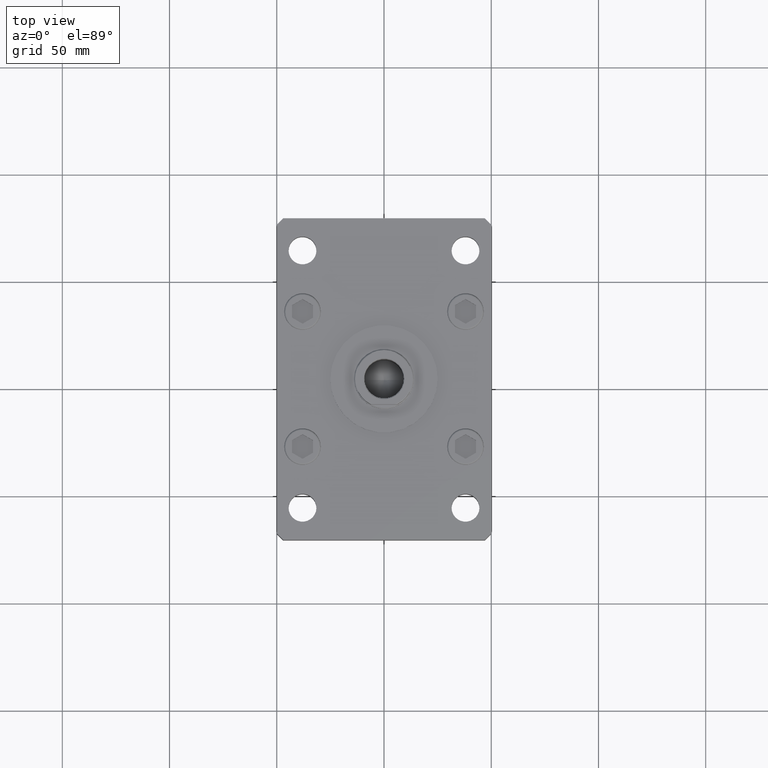
[diagram: clean part render]
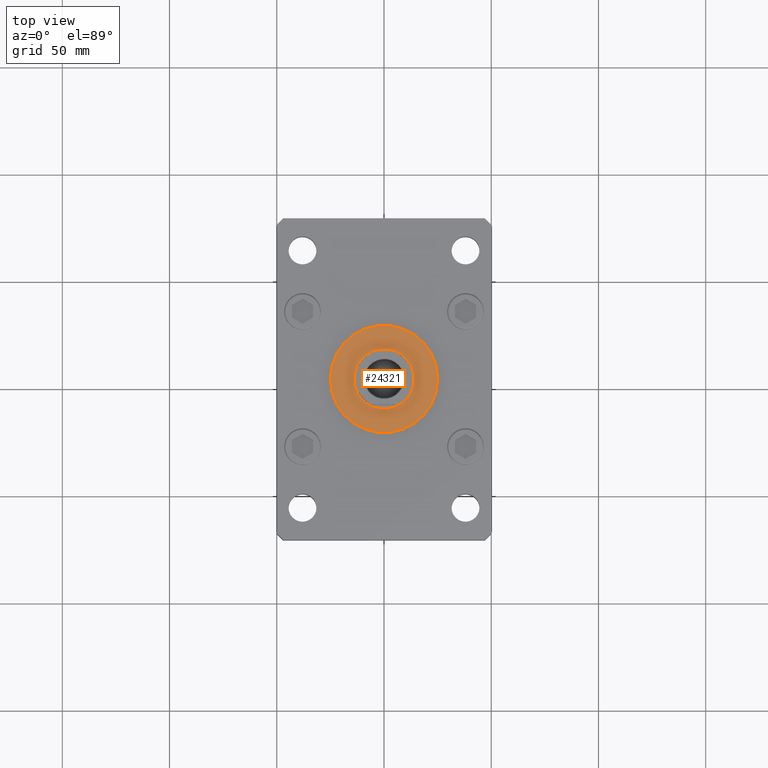
[diagram: same view with one face highlighted and labeled with its STEP entity id]
A machine part, top view. The second image highlights one B-rep face of the part: STEP entity #24321.
In plain terms, the highlighted planar face has unit normal (0, 0, 1).
Its self-contained STEP definition (entity closure, byte-faithful):
#1903 = AXIS2_PLACEMENT_3D ( 'NONE', #25295, #29933, #46570 ) ;
#3270 = VERTEX_POINT ( 'NONE', #29885 ) ;
#3330 = EDGE_CURVE ( 'NONE', #20069, #3270, #34415, .T. ) ;
#3609 = FACE_BOUND ( 'NONE', #10957, .T. ) ;
#5674 = EDGE_LOOP ( 'NONE', ( #10633, #47707 ) ) ;
#6528 = AXIS2_PLACEMENT_3D ( 'NONE', #18412, #35067, #51149 ) ;
#6804 = ORIENTED_EDGE ( 'NONE', *, *, #8152, .F. ) ;
#8152 = EDGE_CURVE ( 'NONE', #31605, #15254, #22289, .T. ) ;
#10633 = ORIENTED_EDGE ( 'NONE', *, *, #3330, .T. ) ;
#10957 = EDGE_LOOP ( 'NONE', ( #28692, #6804 ) ) ;
#15254 = VERTEX_POINT ( 'NONE', #32230 ) ;
#16432 = DIRECTION ( 'NONE',  ( 0.000000000000000000, 0.000000000000000000, 1.000000000000000000 ) ) ;
#17909 = CARTESIAN_POINT ( 'NONE',  ( -25.00000000000000000, 0.000000000000000000, 22.00000000000000000 ) ) ;
#18352 = CIRCLE ( 'NONE', #36661, 14.00000000000000000 ) ;
#18412 = CARTESIAN_POINT ( 'NONE',  ( 0.000000000000000000, 0.000000000000000000, 22.00000000000000000 ) ) ;
#18811 = AXIS2_PLACEMENT_3D ( 'NONE', #49443, #49719, #44296 ) ;
#20069 = VERTEX_POINT ( 'NONE', #17909 ) ;
#20498 = CARTESIAN_POINT ( 'NONE',  ( 0.000000000000000000, 0.000000000000000000, 22.00000000000000000 ) ) ;
#22289 = CIRCLE ( 'NONE', #18811, 14.00000000000000000 ) ;
#22667 = AXIS2_PLACEMENT_3D ( 'NONE', #20498, #16432, #36890 ) ;
#24321 = ADVANCED_FACE ( 'NONE', ( #3609, #41256 ), #28701, .T. ) ;
#25295 = CARTESIAN_POINT ( 'NONE',  ( 0.000000000000000000, 0.000000000000000000, 22.00000000000000000 ) ) ;
#28692 = ORIENTED_EDGE ( 'NONE', *, *, #51384, .F. ) ;
#28701 = PLANE ( 'NONE',  #22667 ) ;
#29885 = CARTESIAN_POINT ( 'NONE',  ( 25.00000000000000000, 3.061616997868383043E-15, 22.00000000000000000 ) ) ;
#29933 = DIRECTION ( 'NONE',  ( 0.000000000000000000, 0.000000000000000000, 1.000000000000000000 ) ) ;
#31605 = VERTEX_POINT ( 'NONE', #31852 ) ;
#31852 = CARTESIAN_POINT ( 'NONE',  ( -14.00000000000000000, 1.714505518806294638E-15, 22.00000000000000000 ) ) ;
#32230 = CARTESIAN_POINT ( 'NONE',  ( 14.00000000000000000, 0.000000000000000000, 22.00000000000000000 ) ) ;
#33322 = DIRECTION ( 'NONE',  ( 1.000000000000000000, 0.000000000000000000, 0.000000000000000000 ) ) ;
#34415 = CIRCLE ( 'NONE', #6528, 25.00000000000000000 ) ;
#35067 = DIRECTION ( 'NONE',  ( 0.000000000000000000, 0.000000000000000000, 1.000000000000000000 ) ) ;
#36661 = AXIS2_PLACEMENT_3D ( 'NONE', #36876, #50212, #33322 ) ;
#36876 = CARTESIAN_POINT ( 'NONE',  ( 0.000000000000000000, 0.000000000000000000, 22.00000000000000000 ) ) ;
#36890 = DIRECTION ( 'NONE',  ( 1.000000000000000000, 0.000000000000000000, -0.000000000000000000 ) ) ;
#41256 = FACE_OUTER_BOUND ( 'NONE', #5674, .T. ) ;
#44296 = DIRECTION ( 'NONE',  ( 1.000000000000000000, 0.000000000000000000, 0.000000000000000000 ) ) ;
#46570 = DIRECTION ( 'NONE',  ( 1.000000000000000000, 0.000000000000000000, 0.000000000000000000 ) ) ;
#47707 = ORIENTED_EDGE ( 'NONE', *, *, #53830, .T. ) ;
#49443 = CARTESIAN_POINT ( 'NONE',  ( 0.000000000000000000, 0.000000000000000000, 22.00000000000000000 ) ) ;
#49719 = DIRECTION ( 'NONE',  ( 0.000000000000000000, 0.000000000000000000, 1.000000000000000000 ) ) ;
#49770 = CIRCLE ( 'NONE', #1903, 25.00000000000000000 ) ;
#50212 = DIRECTION ( 'NONE',  ( 0.000000000000000000, 0.000000000000000000, 1.000000000000000000 ) ) ;
#51149 = DIRECTION ( 'NONE',  ( 1.000000000000000000, 0.000000000000000000, 0.000000000000000000 ) ) ;
#51384 = EDGE_CURVE ( 'NONE', #15254, #31605, #18352, .T. ) ;
#53830 = EDGE_CURVE ( 'NONE', #3270, #20069, #49770, .T. ) ;